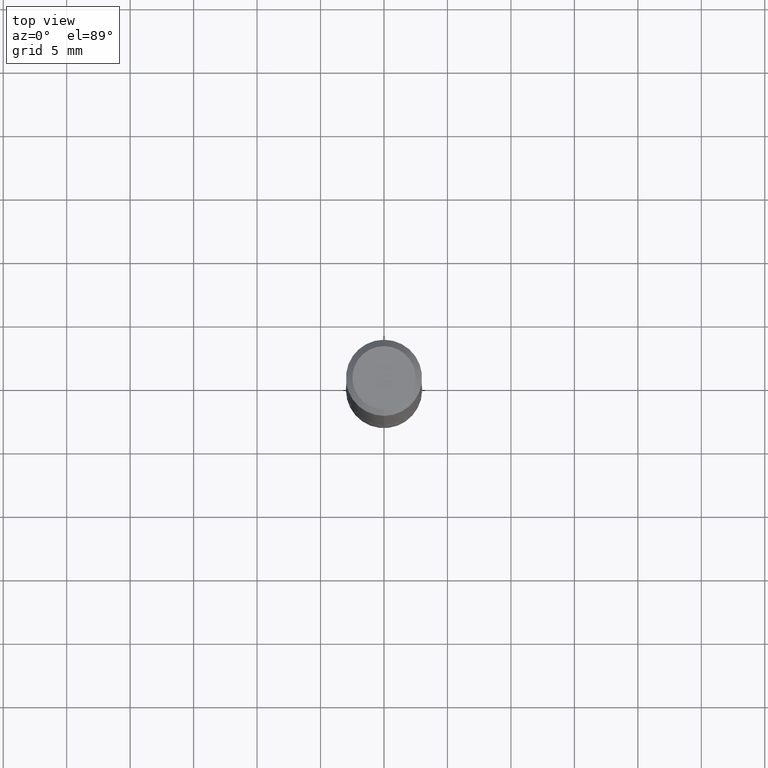
[diagram: clean part render]
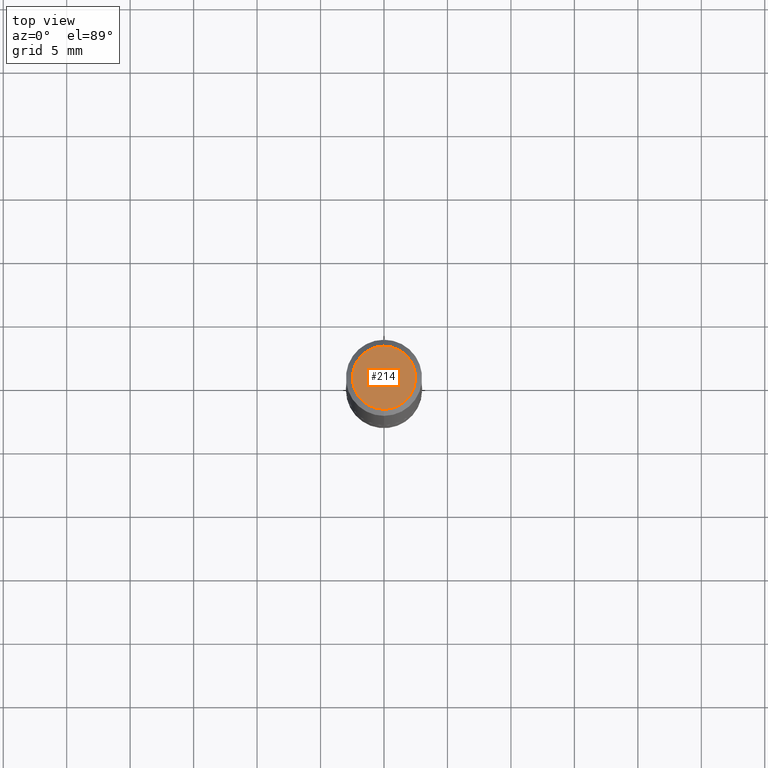
[diagram: same view with one face highlighted and labeled with its STEP entity id]
A machine part, top view. The second image highlights one B-rep face of the part: STEP entity #214.
In plain terms, the highlighted planar face has unit normal (0, -0, -1).
Its self-contained STEP definition (entity closure, byte-faithful):
#9 = EDGE_LOOP ( 'NONE', ( #398, #208 ) ) ;
#28 = DIRECTION ( 'NONE',  ( 2.453207642472712315E-29, -3.480398884812129340E-15, -1.000000000000000000 ) ) ;
#31 = DIRECTION ( 'NONE',  ( 6.982962677686265922E-15, 1.000000000000000000, -3.480398884812129340E-15 ) ) ;
#58 = VERTEX_POINT ( 'NONE', #273 ) ;
#59 = DIRECTION ( 'NONE',  ( -6.982962677686265133E-15, -1.000000000000000000, 3.480398884812129340E-15 ) ) ;
#62 = FACE_OUTER_BOUND ( 'NONE', #9, .T. ) ;
#66 = CIRCLE ( 'NONE', #87, 0.09810000000000024256 ) ;
#87 = AXIS2_PLACEMENT_3D ( 'NONE', #383, #163, #59 ) ;
#102 = EDGE_CURVE ( 'NONE', #138, #58, #136, .T. ) ;
#136 = CIRCLE ( 'NONE', #370, 0.09810000000000024256 ) ;
#138 = VERTEX_POINT ( 'NONE', #275 ) ;
#163 = DIRECTION ( 'NONE',  ( -2.453207642472712595E-29, 3.480398884812129340E-15, 1.000000000000000000 ) ) ;
#208 = ORIENTED_EDGE ( 'NONE', *, *, #102, .T. ) ;
#214 = ADVANCED_FACE ( 'NONE', ( #62 ), #324, .F. ) ;
#248 = CARTESIAN_POINT ( 'NONE',  ( 6.728461373399560845E-45, -9.545759215423528574E-31, -2.742719881068690721E-16 ) ) ;
#254 = DIRECTION ( 'NONE',  ( -2.453207642472712595E-29, 3.480398884812129340E-15, 1.000000000000000000 ) ) ;
#273 = CARTESIAN_POINT ( 'NONE',  ( 7.548582654578864435E-16, 0.09810000000000024256, -6.156991187069398174E-16 ) ) ;
#275 = CARTESIAN_POINT ( 'NONE',  ( -7.416198335591031939E-16, -0.09810000000000024256, 6.715514249320171023E-17 ) ) ;
#277 = DIRECTION ( 'NONE',  ( -6.982962677686265133E-15, -1.000000000000000000, 3.480398884812129340E-15 ) ) ;
#284 = CARTESIAN_POINT ( 'NONE',  ( 6.850286386810243286E-16, 0.09810000000000024256, -4.785631246535053306E-16 ) ) ;
#324 = PLANE ( 'NONE',  #410 ) ;
#347 = EDGE_CURVE ( 'NONE', #58, #138, #66, .T. ) ;
#370 = AXIS2_PLACEMENT_3D ( 'NONE', #248, #254, #277 ) ;
#383 = CARTESIAN_POINT ( 'NONE',  ( 6.728461373399560845E-45, -9.545759215423528574E-31, -2.742719881068690721E-16 ) ) ;
#398 = ORIENTED_EDGE ( 'NONE', *, *, #347, .T. ) ;
#410 = AXIS2_PLACEMENT_3D ( 'NONE', #284, #28, #31 ) ;